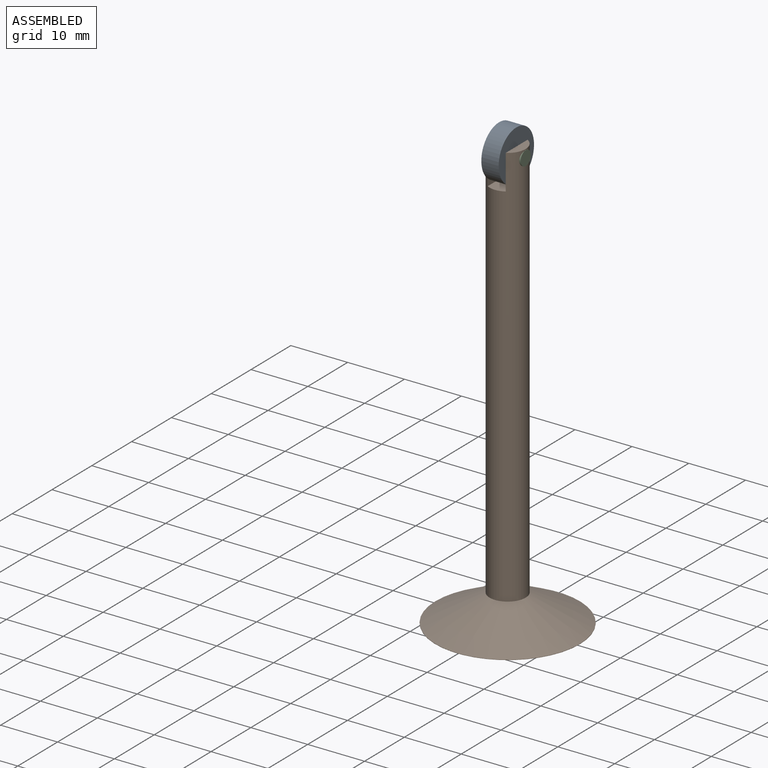
[diagram: assembled view]
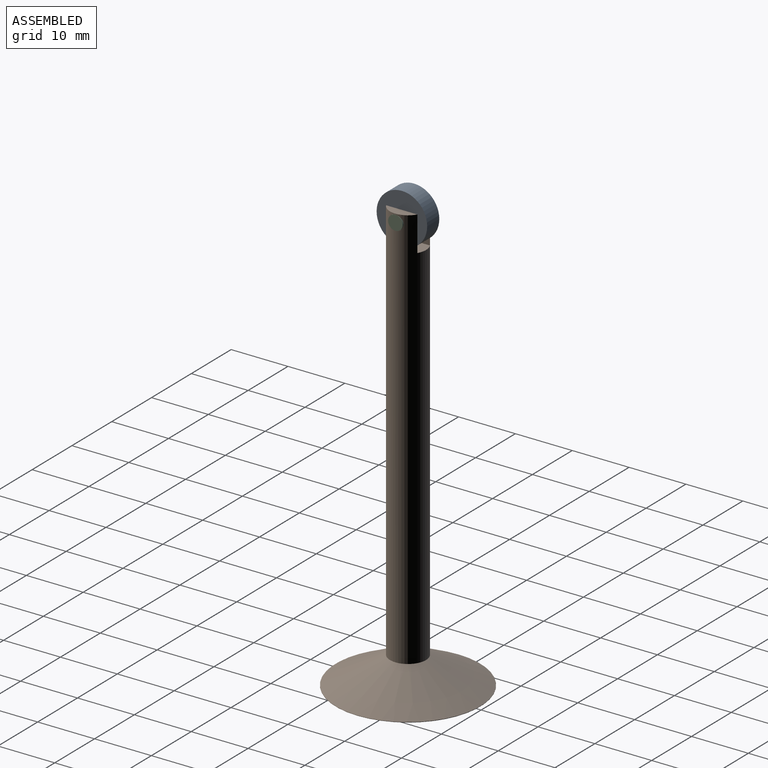
[diagram: assembled view, second angle]
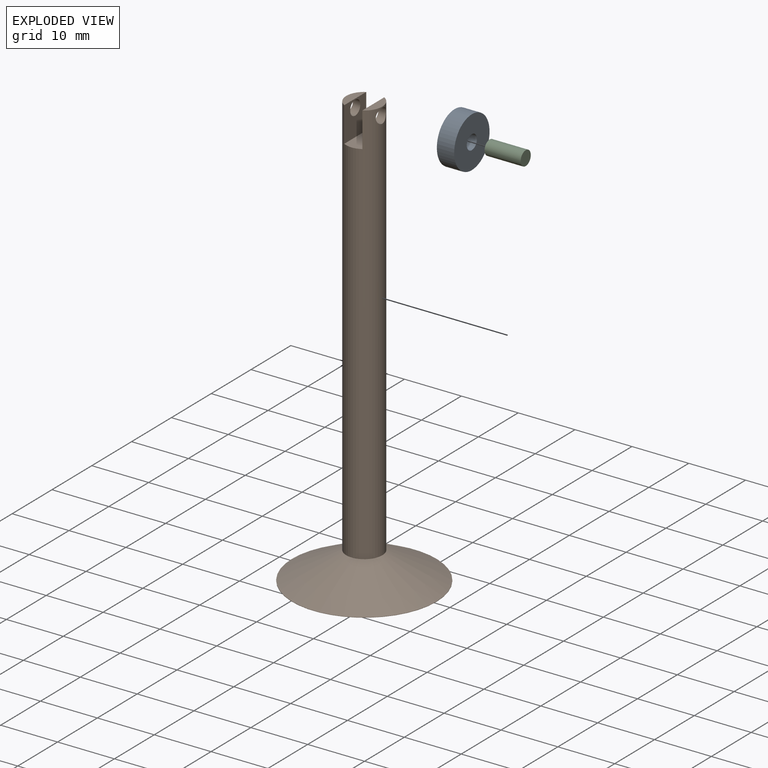
[diagram: exploded view]
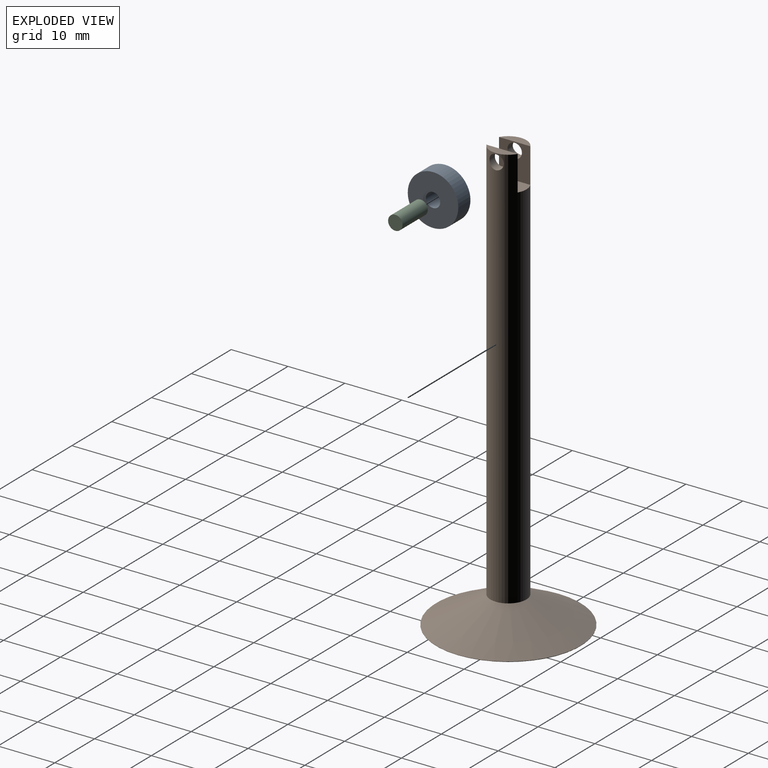
[diagram: exploded view, second angle]
ASSEMBLY  parts=3 mates=2
PART A: 4 faces, bbox 8.9x3x8.9 mm
  f0: cylinder r=4.45mm len=8.89mm, axis (0,1,0), area 85.1mm2, adj f1,f2
  f1: plane 8.89x8.89mm, normal (0,-1,0), area 57mm2, adj f0,f3
  f2: plane 8.89x8.89mm, normal (0,1,0), area 57mm2, adj f0,f3
  f3: cylinder r=1.27mm len=3.05mm, axis (0,-1,0), area 24.3mm2, adj f1,f2
PART B: 11 faces, bbox 25.4x25.4x76.2 mm
  f0: plane 5.5x1.59mm, normal (0,0,1), area 6.2mm2, adj f4,f8
  f1: cylinder r=12.7mm len=25.4mm, axis (0,0,-1), area 4.8mm2, adj f2,f3
  f2: plane 25.4x25.4mm, normal (0,0,-1), area 506.7mm2, adj f1
  f3: cone r=3.17mm half-angle=63.2deg, axis (0,0,-1), area 532.1mm2, adj f1,f4
  f4: cylinder r=3.17mm len=71.33mm, axis (0,0,1), area 1371.9mm2, adj f0,f3,f5,f6,f7,f8,f9,f10
  f5: plane 5.5x1.59mm, normal (0,0,1), area 6.2mm2, adj f4,f7
  f6: plane 6.35x3.18mm, normal (0,0,1), area 19.3mm2, adj f4,f7,f8
  f7: plane 6.14x5.5mm, normal (-1,0,0), area 28.7mm2, adj f4,f5,f6,f10
  f8: plane 6.14x5.5mm, normal (1,0,0), area 28.7mm2, adj f0,f4,f6,f9
  f9: cylinder r=1.27mm len=2.54mm, axis (1,0,0), area 11.6mm2, adj f4,f8
  f10: cylinder r=1.27mm len=2.54mm, axis (1,0,0), area 11.6mm2, adj f4,f7
PART C: 3 faces, bbox 2.5x6.4x2.5 mm
  f0: cylinder r=1.27mm len=6.35mm, axis (0,1,0), area 50.7mm2, adj f1,f2
  f1: plane 2.54x2.54mm, normal (0,-1,0), area 5.1mm2, adj f0
  f2: plane 2.54x2.54mm, normal (0,1,0), area 5.1mm2, adj f0
PLACE A rot(axis=(0,0,-1),90deg) t=(-37.01,-1.84,67.27)mm
PLACE B t=(-38.55,-1.84,-7.48)mm
PLACE C rot(axis=(-0.58,0.58,0.58),120deg) t=(-41.71,-1.84,67.27)mm
MATE revolute A.f0 <-> C.f0  axis (-1,0,0) through (-38.54,-1.84,67.27)mm
MATE fastened C.f0 <-> B.f9  axis (1,0,0) through (-35.36,-1.84,67.27)mm
